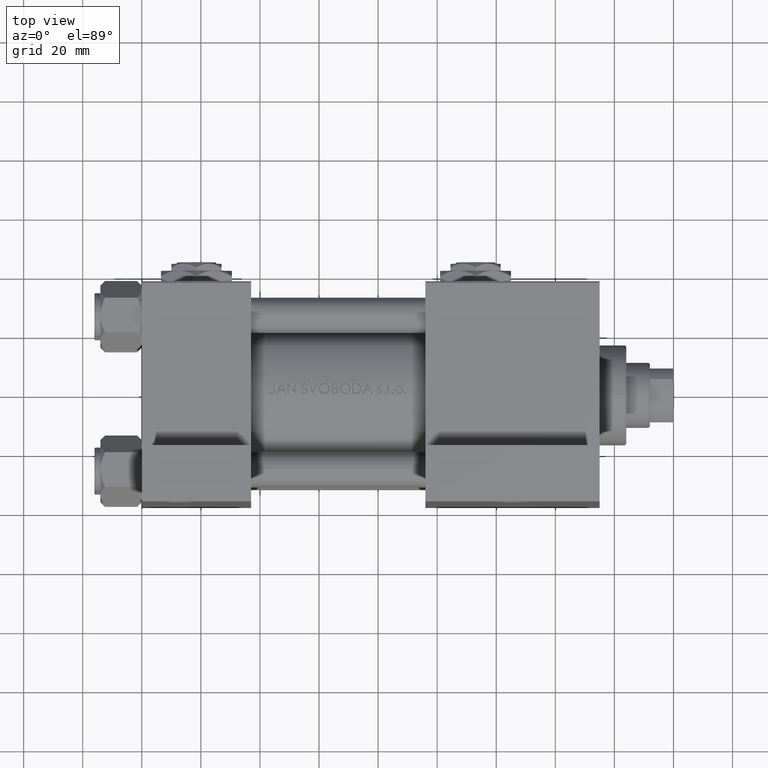
[diagram: clean part render]
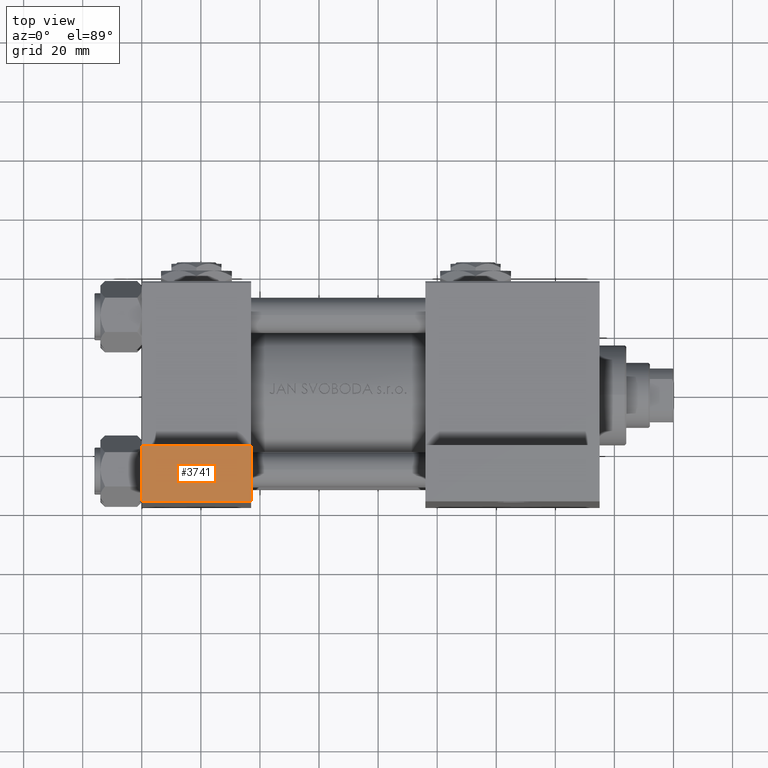
[diagram: same view with one face highlighted and labeled with its STEP entity id]
A machine part, top view. The second image highlights one B-rep face of the part: STEP entity #3741.
In plain terms, the highlighted planar face has unit normal (0, 0, 1).
Its self-contained STEP definition (entity closure, byte-faithful):
#624 = CARTESIAN_POINT ( 'NONE',  ( 3.977209754999747208E-16, -63.50000000000000000, -18.50000000000000355 ) ) ;
#2380 = LINE ( 'NONE', #29401, #44503 ) ;
#2612 = AXIS2_PLACEMENT_3D ( 'NONE', #31416, #4153, #12548 ) ;
#3635 = CARTESIAN_POINT ( 'NONE',  ( 37.00000000000000000, -63.50000000000000000, -37.49999999999999289 ) ) ;
#3701 = ORIENTED_EDGE ( 'NONE', *, *, #7149, .T. ) ;
#3741 = ADVANCED_FACE ( 'NONE', ( #27934 ), #16291, .T. ) ;
#4153 = DIRECTION ( 'NONE',  ( 0.000000000000000000, -1.000000000000000000, 1.734723475976806848E-16 ) ) ;
#7149 = EDGE_CURVE ( 'NONE', #25278, #10852, #2380, .T. ) ;
#7794 = VECTOR ( 'NONE', #22963, 1000.000000000000000 ) ;
#10852 = VERTEX_POINT ( 'NONE', #15719 ) ;
#12213 = DIRECTION ( 'NONE',  ( 0.000000000000000000, -1.734723475976806848E-16, -1.000000000000000000 ) ) ;
#12548 = DIRECTION ( 'NONE',  ( 0.000000000000000000, -1.734723475976806848E-16, -1.000000000000000000 ) ) ;
#15474 = CARTESIAN_POINT ( 'NONE',  ( 37.00000000000000000, -63.49999999999998579, 26.72167621838007889 ) ) ;
#15719 = CARTESIAN_POINT ( 'NONE',  ( 3.977209754999747208E-16, -63.50000000000000000, -37.49999999999999289 ) ) ;
#16291 = PLANE ( 'NONE',  #2612 ) ;
#18463 = EDGE_CURVE ( 'NONE', #45990, #10852, #31248, .T. ) ;
#21025 = VECTOR ( 'NONE', #27509, 1000.000000000000000 ) ;
#22963 = DIRECTION ( 'NONE',  ( 1.000000000000000000, 0.000000000000000000, 0.000000000000000000 ) ) ;
#23054 = EDGE_LOOP ( 'NONE', ( #27807, #3701, #35469, #45675 ) ) ;
#23081 = CARTESIAN_POINT ( 'NONE',  ( 3.977209754999747208E-16, -63.50000000000000000, -37.49999999999999289 ) ) ;
#25278 = VERTEX_POINT ( 'NONE', #43919 ) ;
#27509 = DIRECTION ( 'NONE',  ( -1.000000000000000000, -0.000000000000000000, -0.000000000000000000 ) ) ;
#27807 = ORIENTED_EDGE ( 'NONE', *, *, #39304, .F. ) ;
#27934 = FACE_OUTER_BOUND ( 'NONE', #23054, .T. ) ;
#29401 = CARTESIAN_POINT ( 'NONE',  ( 3.977209754999747208E-16, -63.49999999999998579, 26.72167621838007889 ) ) ;
#31248 = LINE ( 'NONE', #23081, #21025 ) ;
#31416 = CARTESIAN_POINT ( 'NONE',  ( 3.977209754999747208E-16, -63.49999999999998579, 26.72167621838007889 ) ) ;
#34254 = EDGE_CURVE ( 'NONE', #34526, #45990, #39001, .T. ) ;
#34526 = VERTEX_POINT ( 'NONE', #45652 ) ;
#35469 = ORIENTED_EDGE ( 'NONE', *, *, #18463, .F. ) ;
#38921 = VECTOR ( 'NONE', #12213, 1000.000000000000000 ) ;
#39001 = LINE ( 'NONE', #15474, #38921 ) ;
#39304 = EDGE_CURVE ( 'NONE', #25278, #34526, #41778, .T. ) ;
#41778 = LINE ( 'NONE', #624, #7794 ) ;
#43919 = CARTESIAN_POINT ( 'NONE',  ( 3.977209754999747208E-16, -63.50000000000000000, -18.50000000000000355 ) ) ;
#44503 = VECTOR ( 'NONE', #47754, 1000.000000000000000 ) ;
#45652 = CARTESIAN_POINT ( 'NONE',  ( 37.00000000000000000, -63.50000000000000000, -18.50000000000000355 ) ) ;
#45675 = ORIENTED_EDGE ( 'NONE', *, *, #34254, .F. ) ;
#45990 = VERTEX_POINT ( 'NONE', #3635 ) ;
#47754 = DIRECTION ( 'NONE',  ( 0.000000000000000000, -1.734723475976806848E-16, -1.000000000000000000 ) ) ;